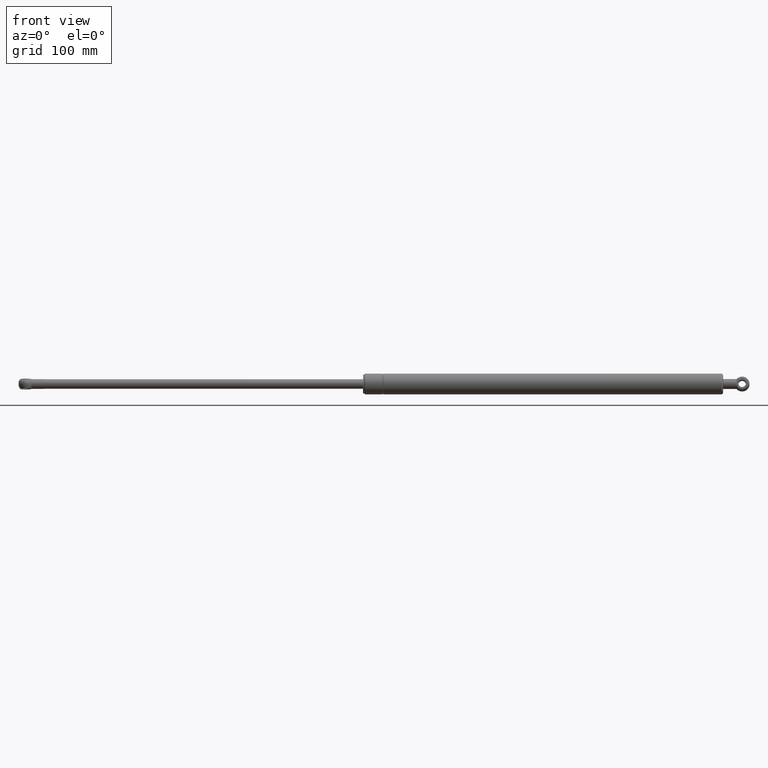
[diagram: clean part render]
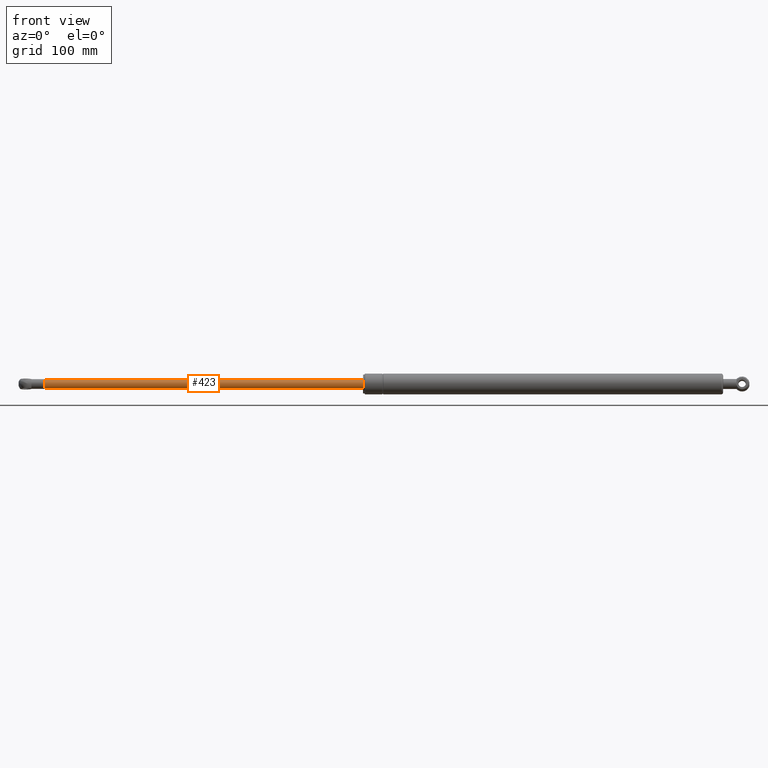
[diagram: same view with one face highlighted and labeled with its STEP entity id]
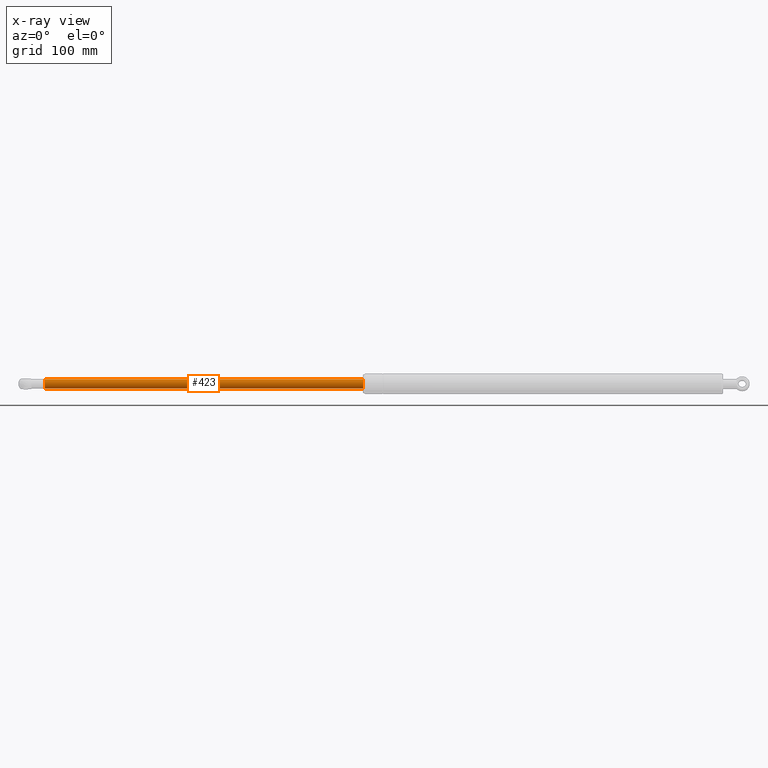
[diagram: x-ray of the same camera — body ghosted, the highlighted face saturated]
A machine part, front view. The second image highlights one B-rep face of the part: STEP entity #423.
The next image is the same camera in x-ray: the body ghosted, the highlighted face saturated — about 0% of this face is hidden behind the body in this view.
In plain terms, the highlighted cylindrical surface (bore or boss wall) has radius 5 mm, axis along (-1, -0, -0).
Its self-contained STEP definition (entity closure, byte-faithful):
#91=FACE_BOUND('',#198,.T.);
#110=CYLINDRICAL_SURFACE('',#494,5.00000000000002);
#141=FACE_OUTER_BOUND('',#197,.T.);
#197=EDGE_LOOP('',(#376));
#198=EDGE_LOOP('',(#377));
#240=CIRCLE('',#493,5.);
#241=CIRCLE('',#495,5.00000000000003);
#273=VERTEX_POINT('',#773);
#274=VERTEX_POINT('',#776);
#310=EDGE_CURVE('',#273,#273,#240,.T.);
#311=EDGE_CURVE('',#274,#274,#241,.T.);
#376=ORIENTED_EDGE('',*,*,#311,.F.);
#377=ORIENTED_EDGE('',*,*,#310,.T.);
#423=ADVANCED_FACE('',(#141,#91),#110,.T.);
#493=AXIS2_PLACEMENT_3D('',#774,#632,#633);
#494=AXIS2_PLACEMENT_3D('',#775,#634,#635);
#495=AXIS2_PLACEMENT_3D('',#777,#636,#637);
#632=DIRECTION('center_axis',(-1.,0.,0.));
#633=DIRECTION('ref_axis',(0.,0.,1.));
#634=DIRECTION('center_axis',(-1.,0.,0.));
#635=DIRECTION('ref_axis',(0.,0.,1.));
#636=DIRECTION('center_axis',(-1.,0.,0.));
#637=DIRECTION('ref_axis',(0.,0.,1.));
#773=CARTESIAN_POINT('',(338.,0.,5.));
#774=CARTESIAN_POINT('Origin',(338.,0.,0.));
#775=CARTESIAN_POINT('Origin',(169.,0.,0.));
#776=CARTESIAN_POINT('',(7.1959436245814E-32,0.,5.00000000000003));
#777=CARTESIAN_POINT('Origin',(0.,0.,0.));